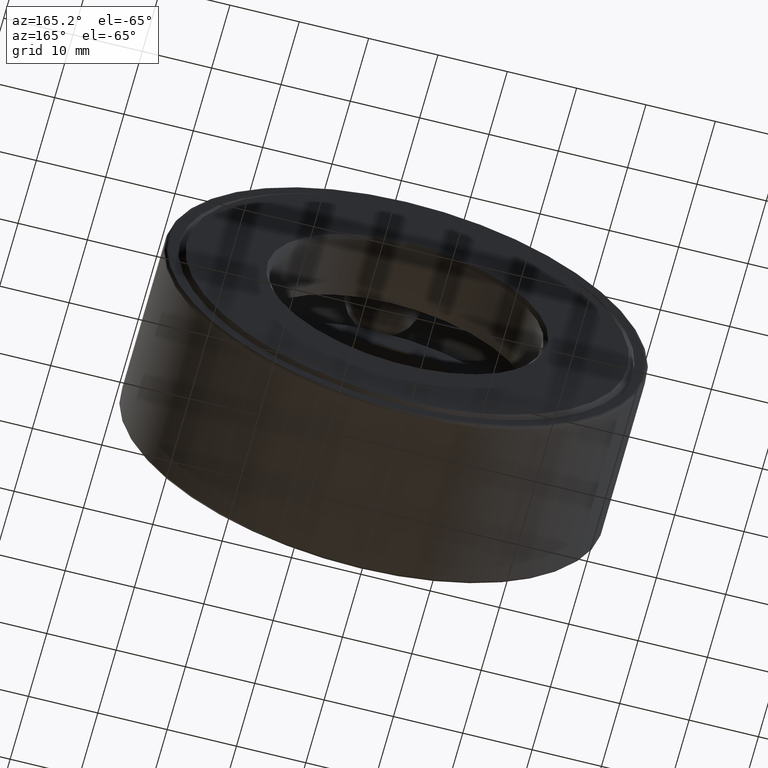
[diagram: clean part render]
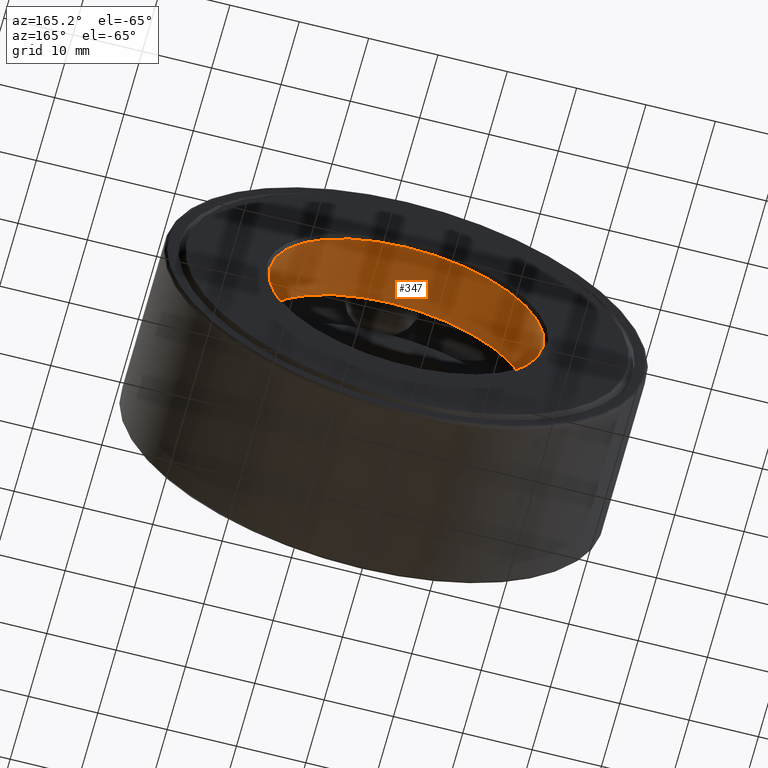
[diagram: same view with one face highlighted and labeled with its STEP entity id]
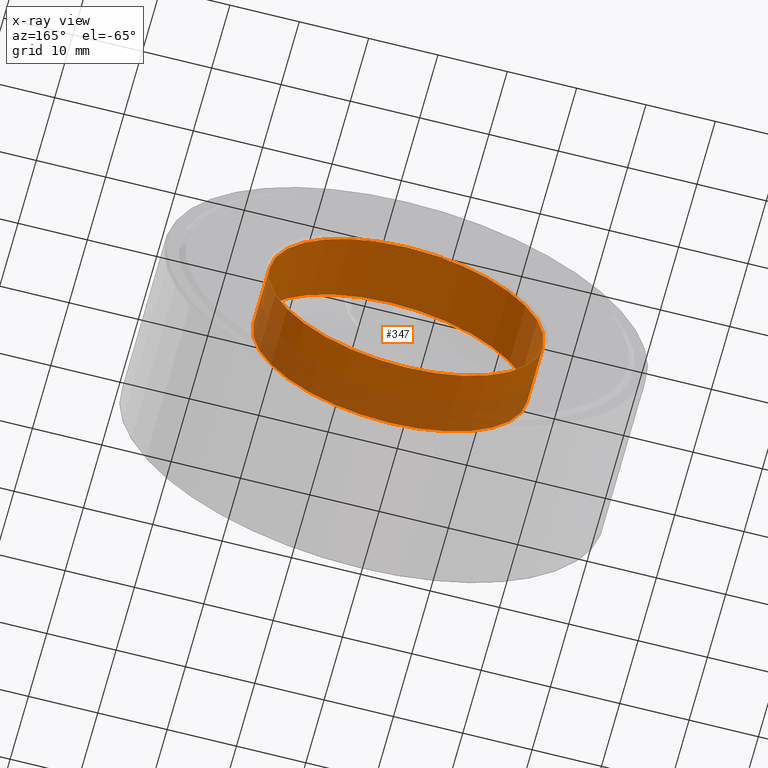
[diagram: x-ray of the same camera — body ghosted, the highlighted face saturated]
A machine part, auxiliary view. The second image highlights one B-rep face of the part: STEP entity #347.
The next image is the same camera in x-ray: the body ghosted, the highlighted face saturated — about 26% of this face is hidden behind the body in this view.
In plain terms, the highlighted cylindrical surface (bore or boss wall) has radius 19.8438 mm, axis along (-0, 1, -0).
Its self-contained STEP definition (entity closure, byte-faithful):
#1 = AXIS2_PLACEMENT_3D ( 'NONE', #585, #500, #362 ) ;
#28 = FACE_OUTER_BOUND ( 'NONE', #515, .T. ) ;
#73 = DIRECTION ( 'NONE',  ( -0.0000000000000000000, 1.000000000000000000, -0.0000000000000000000 ) ) ;
#85 = CIRCLE ( 'NONE', #305, 0.7812500000000000000 ) ;
#102 = ORIENTED_EDGE ( 'NONE', *, *, #436, .F. ) ;
#115 = VERTEX_POINT ( 'NONE', #434 ) ;
#129 = CIRCLE ( 'NONE', #495, 0.7812500000000000000 ) ;
#148 = FACE_OUTER_BOUND ( 'NONE', #297, .T. ) ;
#175 = EDGE_CURVE ( 'NONE', #496, #496, #85, .T. ) ;
#217 = ORIENTED_EDGE ( 'NONE', *, *, #175, .T. ) ;
#248 = CYLINDRICAL_SURFACE ( 'NONE', #1, 0.7812500000000000000 ) ;
#297 = EDGE_LOOP ( 'NONE', ( #217 ) ) ;
#305 = AXIS2_PLACEMENT_3D ( 'NONE', #542, #73, #310 ) ;
#310 = DIRECTION ( 'NONE',  ( 0.0000000000000000000, 0.0000000000000000000, 1.000000000000000000 ) ) ;
#347 = ADVANCED_FACE ( 'NONE', ( #148, #28 ), #248, .F. ) ;
#362 = DIRECTION ( 'NONE',  ( 0.0000000000000000000, 0.0000000000000000000, 1.000000000000000000 ) ) ;
#434 = CARTESIAN_POINT ( 'NONE',  ( 0.0000000000000000000, 0.6312499999999999800, 0.7812500000000000000 ) ) ;
#436 = EDGE_CURVE ( 'NONE', #115, #115, #129, .T. ) ;
#495 = AXIS2_PLACEMENT_3D ( 'NONE', #554, #597, #511 ) ;
#496 = VERTEX_POINT ( 'NONE', #519 ) ;
#500 = DIRECTION ( 'NONE',  ( -0.0000000000000000000, 1.000000000000000000, -0.0000000000000000000 ) ) ;
#511 = DIRECTION ( 'NONE',  ( 0.0000000000000000000, 0.0000000000000000000, 1.000000000000000000 ) ) ;
#515 = EDGE_LOOP ( 'NONE', ( #102 ) ) ;
#519 = CARTESIAN_POINT ( 'NONE',  ( 0.0000000000000000000, 0.9799999999999995400, 0.7812500000000000000 ) ) ;
#542 = CARTESIAN_POINT ( 'NONE',  ( 0.0000000000000000000, 0.9799999999999995400, 0.0000000000000000000 ) ) ;
#554 = CARTESIAN_POINT ( 'NONE',  ( 0.0000000000000000000, 0.6312499999999999800, 0.0000000000000000000 ) ) ;
#585 = CARTESIAN_POINT ( 'NONE',  ( 0.0000000000000000000, 0.0000000000000000000, 0.0000000000000000000 ) ) ;
#597 = DIRECTION ( 'NONE',  ( -0.0000000000000000000, 1.000000000000000000, -0.0000000000000000000 ) ) ;